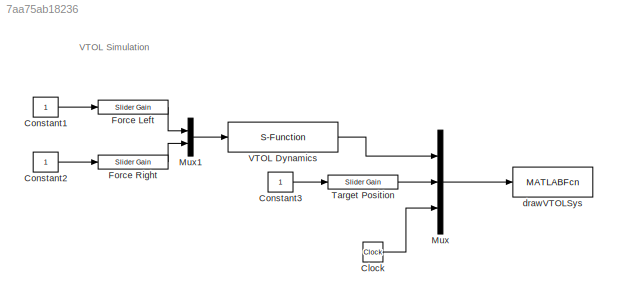
MODEL slx_7aa75ab18236
KIND model
CONFIG AbsTol = auto
CONFIG FixedStep = auto
CONFIG InitFcn = param
CONFIG MaxStep = auto
CONFIG MinStep = auto
CONFIG RelTol = 1e-3
CONFIG SampleTimeConstraint = Unconstrained
CONFIG Solver = ode45
CONFIG SolverMode = Auto
CONFIG SolverName = ode45
CONFIG StartTime = 0.0
CONFIG StopTime = 10000
BLOCK [Clock] Clock
BLOCK [Constant] Constant1
BLOCK [Constant] Constant2
BLOCK [Constant] Constant3
BLOCK [Reference] Force Left  REF=simulink/Math
Operations/Slider
Gain
  Ports = [1, 1]
  SourceBlock = simulink/Math\nOperations/Slider\nGain
  SourceType = Slider Gain
BLOCK [Reference] Force Right  REF=simulink/Math
Operations/Slider
Gain
  Ports = [1, 1]
  SourceBlock = simulink/Math\nOperations/Slider\nGain
  SourceType = Slider Gain
BLOCK [Mux] Mux
  DisplayOption = bar
  Inputs = 3
  Ports = [3, 1]
BLOCK [Mux] Mux1
  DisplayOption = bar
  Inputs = 2
  Ports = [2, 1]
BLOCK [Reference] Target Position   REF=simulink/Math
Operations/Slider
Gain
  Ports = [1, 1]
  SourceBlock = simulink/Math\nOperations/Slider\nGain
  SourceType = Slider Gain
BLOCK [S-Function] VTOL Dynamics
  EnableBusSupport = off
  FunctionName = VTOL_dynamics
  Parameters = P
  Ports = [1, 1]
  SFunctionDeploymentMode = off
BLOCK [MATLABFcn] drawVTOLSys
  MATLABFcn = drawVTOLsys(u)
  OutputDimensions = 0
  Ports = [1]
  SampleTime = 0.1
ANNOTATION (root): VTOL Simulation
LINE Clock:1 -> Mux:3
LINE Constant1:1 -> Force Left:1
LINE Constant2:1 -> Force Right:1
LINE Constant3:1 -> Target Position :1
LINE Force Left:1 -> Mux1:1
LINE Force Right:1 -> Mux1:2
LINE Mux1:1 -> VTOL Dynamics:1
LINE Mux:1 -> drawVTOLSys:1
LINE Target Position :1 -> Mux:2
LINE VTOL Dynamics:1 -> Mux:1
